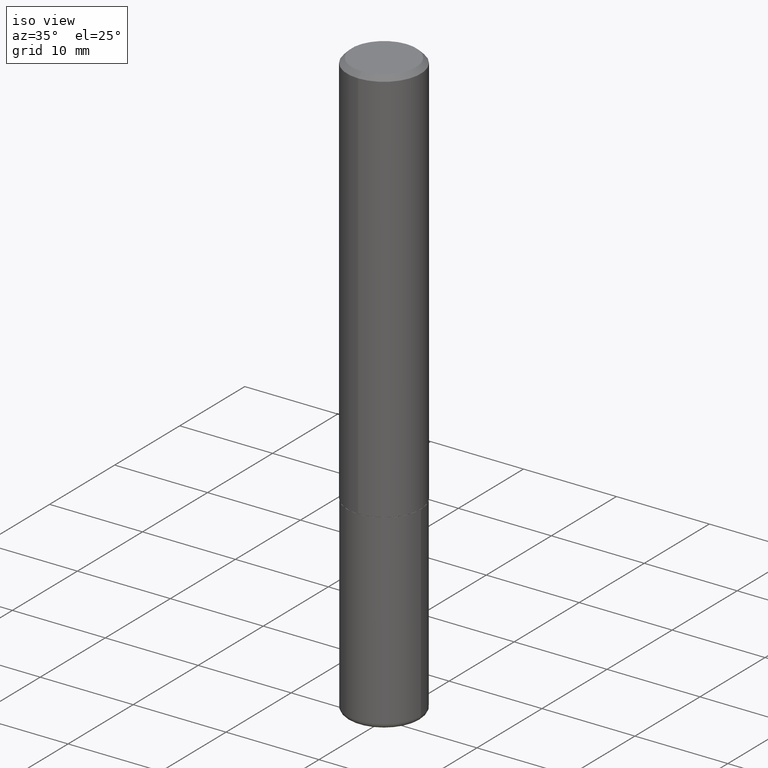
[diagram: clean part render]
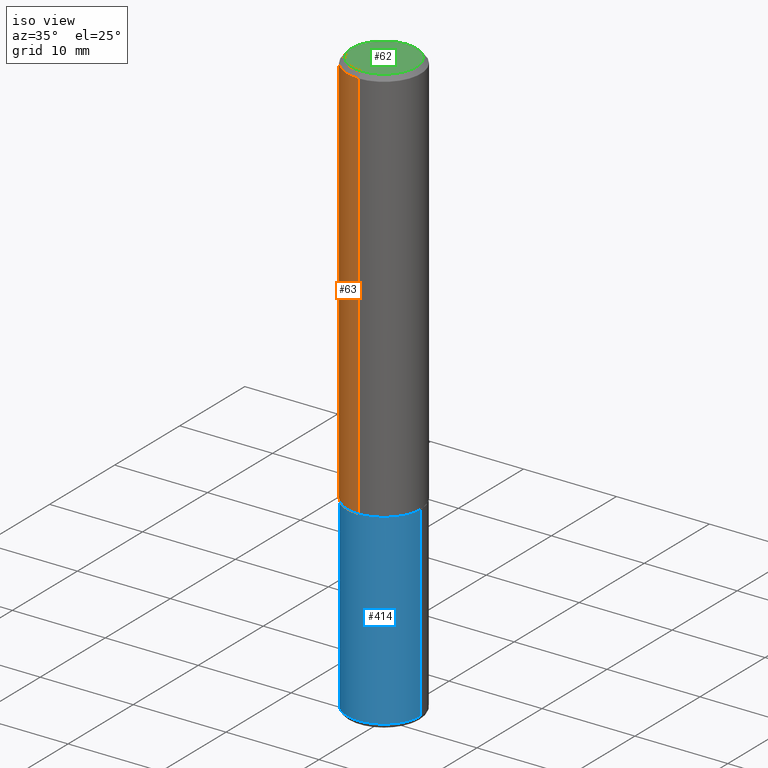
[diagram: same view with three faces highlighted in distinct colors, each labeled with its STEP entity id]
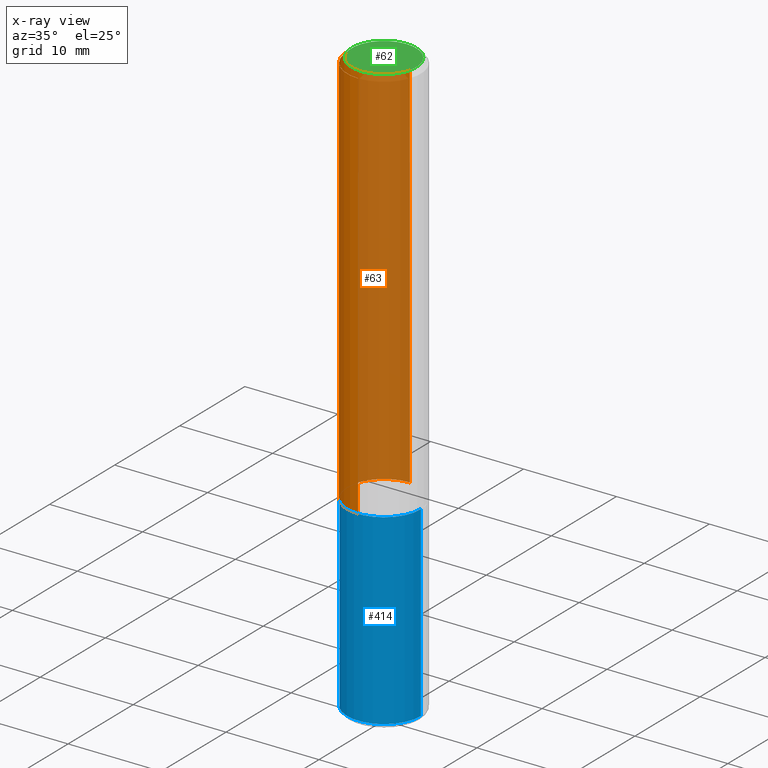
[diagram: x-ray of the same camera — body ghosted, the three highlighted faces saturated]
A machine part, iso view with three faces highlighted in distinct colors.
The next image is the same camera in x-ray (body ghosted, the three faces saturated) — at least one of them is partly hidden behind the body in this view.
Their STEP definitions:

[orange] entity #63 — the highlighted cylindrical surface (partial cylindrical patch) has radius 3.9688 mm, axis along (-0, 0, 1).
#18 = EDGE_LOOP ( 'NONE', ( #109, #334, #336, #207 ) ) ;
#25 = DIRECTION ( 'NONE',  ( -2.445045230849958565E-29, 3.492087922831532098E-15, 1.000000000000000000 ) ) ;
#28 = DIRECTION ( 'NONE',  ( -6.982962677686265133E-15, -1.000000000000000000, 3.496765431890256920E-15 ) ) ;
#49 = DIRECTION ( 'NONE',  ( -6.982962677686265922E-15, -1.000000000000000000, 3.496765431890251792E-15 ) ) ;
#50 = DIRECTION ( 'NONE',  ( -2.445045230849958565E-29, 3.492087922831531704E-15, 1.000000000000000000 ) ) ;
#52 = EDGE_CURVE ( 'NONE', #72, #53, #151, .T. ) ;
#53 = VERTEX_POINT ( 'NONE', #403 ) ;
#63 = ADVANCED_FACE ( 'NONE', ( #178 ), #241, .T. ) ;
#72 = VERTEX_POINT ( 'NONE', #283 ) ;
#88 = AXIS2_PLACEMENT_3D ( 'NONE', #243, #349, #49 ) ;
#95 = AXIS2_PLACEMENT_3D ( 'NONE', #347, #50, #112 ) ;
#109 = ORIENTED_EDGE ( 'NONE', *, *, #393, .F. ) ;
#112 = DIRECTION ( 'NONE',  ( -6.982962677686265922E-15, -1.000000000000000000, 3.492087922831532098E-15 ) ) ;
#119 = AXIS2_PLACEMENT_3D ( 'NONE', #260, #256, #28 ) ;
#137 = CARTESIAN_POINT ( 'NONE',  ( 1.110223024625157132E-15, 0.1562500000000001110, -5.456387379424272725E-16 ) ) ;
#151 = CIRCLE ( 'NONE', #88, 0.1562500000000002220 ) ;
#158 = CARTESIAN_POINT ( 'NONE',  ( -1.091087918388479765E-15, -0.1562500000000001110, 5.456387379424272725E-16 ) ) ;
#169 = CARTESIAN_POINT ( 'NONE',  ( -1.071952812151801215E-15, -0.1562500000000000833, -0.01999999999999948694 ) ) ;
#173 = VECTOR ( 'NONE', #25, 39.37007874015748143 ) ;
#178 = FACE_OUTER_BOUND ( 'NONE', #18, .T. ) ;
#180 = CIRCLE ( 'NONE', #119, 0.1562500000000000000 ) ;
#192 = VECTOR ( 'NONE', #197, 39.37007874015748143 ) ;
#197 = DIRECTION ( 'NONE',  ( -2.445045230849958565E-29, 3.492087922831532098E-15, 1.000000000000000000 ) ) ;
#202 = EDGE_CURVE ( 'NONE', #53, #407, #291, .T. ) ;
#205 = LINE ( 'NONE', #137, #192 ) ;
#207 = ORIENTED_EDGE ( 'NONE', *, *, #286, .F. ) ;
#213 = VERTEX_POINT ( 'NONE', #355 ) ;
#241 = CYLINDRICAL_SURFACE ( 'NONE', #95, 0.1562500000000001110 ) ;
#243 = CARTESIAN_POINT ( 'NONE',  ( 4.124791304443880664E-29, -5.891152325816794336E-15, -1.687000000000000055 ) ) ;
#256 = DIRECTION ( 'NONE',  ( -2.445045230849958565E-29, 3.492087922831531704E-15, 1.000000000000000000 ) ) ;
#260 = CARTESIAN_POINT ( 'NONE',  ( 4.890090461699924977E-31, -6.984175845663074797E-17, -0.02000000000000003511 ) ) ;
#283 = CARTESIAN_POINT ( 'NONE',  ( 1.110223024625178234E-15, 0.1562499999999943101, -1.687000000000000499 ) ) ;
#286 = EDGE_CURVE ( 'NONE', #213, #407, #180, .T. ) ;
#291 = LINE ( 'NONE', #158, #173 ) ;
#334 = ORIENTED_EDGE ( 'NONE', *, *, #52, .T. ) ;
#336 = ORIENTED_EDGE ( 'NONE', *, *, #202, .T. ) ;
#347 = CARTESIAN_POINT ( 'NONE',  ( 0.000000000000000000, 0.000000000000000000, 0.000000000000000000 ) ) ;
#349 = DIRECTION ( 'NONE',  ( -2.445045230849958565E-29, 3.492087922831531704E-15, 1.000000000000000000 ) ) ;
#355 = CARTESIAN_POINT ( 'NONE',  ( 1.091087918388479568E-15, 0.1562499999999999445, -0.02000000000000057981 ) ) ;
#393 = EDGE_CURVE ( 'NONE', #72, #213, #205, .T. ) ;
#403 = CARTESIAN_POINT ( 'NONE',  ( -1.091087918388439336E-15, -0.1562500000000061062, -1.686999999999999611 ) ) ;
#407 = VERTEX_POINT ( 'NONE', #169 ) ;

[blue] entity #414 — the highlighted cylindrical surface (partial cylindrical patch) has radius 3.9688 mm, axis along (-0, 0, 1).
#13 = VERTEX_POINT ( 'NONE', #372 ) ;
#22 = CIRCLE ( 'NONE', #358, 0.1562500000000000000 ) ;
#33 = FACE_OUTER_BOUND ( 'NONE', #92, .T. ) ;
#40 = ORIENTED_EDGE ( 'NONE', *, *, #346, .T. ) ;
#44 = DIRECTION ( 'NONE',  ( 1.000000000000000000, -6.982962677686269077E-15, 0.000000000000000000 ) ) ;
#47 = EDGE_CURVE ( 'NONE', #209, #268, #289, .T. ) ;
#51 = AXIS2_PLACEMENT_3D ( 'NONE', #276, #359, #302 ) ;
#64 = DIRECTION ( 'NONE',  ( 1.000000000000000000, -6.982962677686262766E-15, 0.000000000000000000 ) ) ;
#75 = ORIENTED_EDGE ( 'NONE', *, *, #194, .T. ) ;
#92 = EDGE_LOOP ( 'NONE', ( #264, #75, #40, #362 ) ) ;
#97 = CARTESIAN_POINT ( 'NONE',  ( 6.064762639339139522E-29, -8.658873720331001644E-15, -2.480000000000000426 ) ) ;
#102 = LINE ( 'NONE', #131, #125 ) ;
#122 = CARTESIAN_POINT ( 'NONE',  ( -0.1562500000000000000, 1.110223024625156540E-15, -7.685836078523291160E-30 ) ) ;
#125 = VECTOR ( 'NONE', #262, 39.37007874015748143 ) ;
#131 = CARTESIAN_POINT ( 'NONE',  ( 0.1562500000000000000, -1.091087918388479174E-15, 7.619026212181150377E-30 ) ) ;
#161 = DIRECTION ( 'NONE',  ( -2.445468806185136597E-29, 3.491481338843145583E-15, 1.000000000000000000 ) ) ;
#162 = CYLINDRICAL_SURFACE ( 'NONE', #51, 0.1562500000000000000 ) ;
#183 = EDGE_CURVE ( 'NONE', #13, #209, #326, .T. ) ;
#194 = EDGE_CURVE ( 'NONE', #13, #271, #22, .T. ) ;
#209 = VERTEX_POINT ( 'NONE', #299 ) ;
#233 = AXIS2_PLACEMENT_3D ( 'NONE', #342, #161, #44 ) ;
#262 = DIRECTION ( 'NONE',  ( -2.445468806185136877E-29, 3.491481338843145188E-15, 1.000000000000000000 ) ) ;
#264 = ORIENTED_EDGE ( 'NONE', *, *, #183, .F. ) ;
#268 = VERTEX_POINT ( 'NONE', #292 ) ;
#271 = VERTEX_POINT ( 'NONE', #413 ) ;
#276 = CARTESIAN_POINT ( 'NONE',  ( 0.000000000000000000, 0.000000000000000000, 0.000000000000000000 ) ) ;
#289 = CIRCLE ( 'NONE', #233, 0.1562500000000000000 ) ;
#292 = CARTESIAN_POINT ( 'NONE',  ( 0.1562500000000000000, -6.984708418355709513E-15, -1.688000000000000167 ) ) ;
#296 = VECTOR ( 'NONE', #353, 39.37007874015748143 ) ;
#299 = CARTESIAN_POINT ( 'NONE',  ( -0.1562500000000000000, -6.166024085523959846E-15, -1.688000000000000167 ) ) ;
#302 = DIRECTION ( 'NONE',  ( 1.000000000000000000, -6.982962677686266711E-15, 4.876176775795936353E-29 ) ) ;
#326 = LINE ( 'NONE', #122, #296 ) ;
#342 = CARTESIAN_POINT ( 'NONE',  ( 4.127951344840510809E-29, -5.893620499967230340E-15, -1.688000000000000167 ) ) ;
#346 = EDGE_CURVE ( 'NONE', #271, #268, #102, .T. ) ;
#353 = DIRECTION ( 'NONE',  ( -2.445468806185136877E-29, 3.491481338843145188E-15, 1.000000000000000000 ) ) ;
#356 = DIRECTION ( 'NONE',  ( -2.445468806185136597E-29, 3.491481338843145583E-15, 1.000000000000000000 ) ) ;
#358 = AXIS2_PLACEMENT_3D ( 'NONE', #97, #356, #64 ) ;
#359 = DIRECTION ( 'NONE',  ( -2.445468806185136597E-29, 3.491481338843145583E-15, 1.000000000000000000 ) ) ;
#362 = ORIENTED_EDGE ( 'NONE', *, *, #47, .F. ) ;
#372 = CARTESIAN_POINT ( 'NONE',  ( -0.1562500000000000833, -7.548650695705845104E-15, -2.480000000000000426 ) ) ;
#413 = CARTESIAN_POINT ( 'NONE',  ( 0.1562500000000000833, -9.749961638719480029E-15, -2.480000000000000426 ) ) ;
#414 = ADVANCED_FACE ( 'NONE', ( #33 ), #162, .T. ) ;

[green] entity #62 — the highlighted planar face has unit normal (0, -0, -1).
#36 = CIRCLE ( 'NONE', #199, 0.1362500000000000933 ) ;
#62 = ADVANCED_FACE ( 'NONE', ( #215 ), #144, .F. ) ;
#83 = CIRCLE ( 'NONE', #321, 0.1362500000000000933 ) ;
#89 = CARTESIAN_POINT ( 'NONE',  ( 1.021258291611616861E-15, 0.1362500000000000933, -5.269364822985837754E-16 ) ) ;
#103 = VERTEX_POINT ( 'NONE', #89 ) ;
#123 = DIRECTION ( 'NONE',  ( -2.445045230849958565E-29, 3.492087922831531704E-15, 1.000000000000000000 ) ) ;
#144 = PLANE ( 'NONE',  #295 ) ;
#147 = DIRECTION ( 'NONE',  ( 2.445045230849957724E-29, -3.492087922831532098E-15, -1.000000000000000000 ) ) ;
#172 = EDGE_LOOP ( 'NONE', ( #375, #246 ) ) ;
#186 = EDGE_CURVE ( 'NONE', #376, #103, #83, .T. ) ;
#191 = CARTESIAN_POINT ( 'NONE',  ( 1.250383974604437494E-45, -1.785836401521438243E-31, -5.113950281278734949E-17 ) ) ;
#199 = AXIS2_PLACEMENT_3D ( 'NONE', #305, #331, #226 ) ;
#215 = FACE_OUTER_BOUND ( 'NONE', #172, .T. ) ;
#225 = DIRECTION ( 'NONE',  ( -6.982962677686265922E-15, -1.000000000000000000, 3.492087922831531704E-15 ) ) ;
#226 = DIRECTION ( 'NONE',  ( -6.982962677686265922E-15, -1.000000000000000000, 3.492087922831531704E-15 ) ) ;
#228 = CARTESIAN_POINT ( 'NONE',  ( -1.003347832174086278E-15, -0.1362500000000000933, 4.246574766730091504E-16 ) ) ;
#246 = ORIENTED_EDGE ( 'NONE', *, *, #186, .T. ) ;
#295 = AXIS2_PLACEMENT_3D ( 'NONE', #383, #147, #382 ) ;
#305 = CARTESIAN_POINT ( 'NONE',  ( 1.250383974604437494E-45, -1.785836401521438243E-31, -5.113950281278734949E-17 ) ) ;
#321 = AXIS2_PLACEMENT_3D ( 'NONE', #191, #123, #225 ) ;
#331 = DIRECTION ( 'NONE',  ( -2.445045230849958565E-29, 3.492087922831531704E-15, 1.000000000000000000 ) ) ;
#363 = EDGE_CURVE ( 'NONE', #103, #376, #36, .T. ) ;
#375 = ORIENTED_EDGE ( 'NONE', *, *, #363, .T. ) ;
#376 = VERTEX_POINT ( 'NONE', #228 ) ;
#382 = DIRECTION ( 'NONE',  ( 6.982962677686265922E-15, 1.000000000000000000, -3.492087922831532098E-15 ) ) ;
#383 = CARTESIAN_POINT ( 'NONE',  ( 9.514286648347543521E-16, 0.1362500000000000933, -5.013667308921901438E-16 ) ) ;